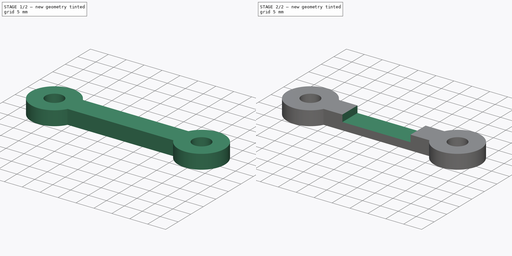
[diagram: build sequence overview — one tinted view per stage of 2, left to right]
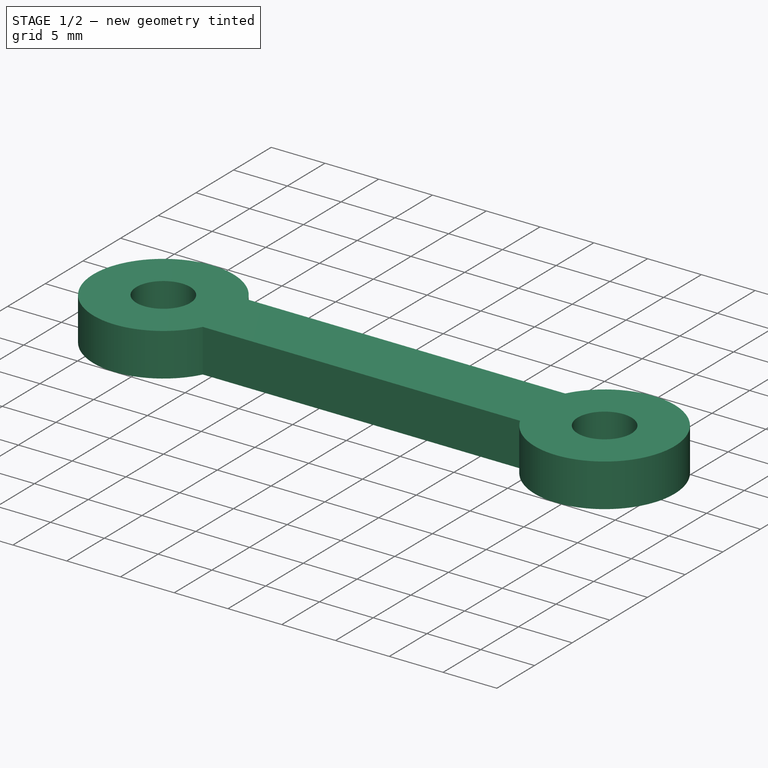
[diagram: stage 1 of 2 — iso view after this stage's code; geometry added in this stage tinted green]
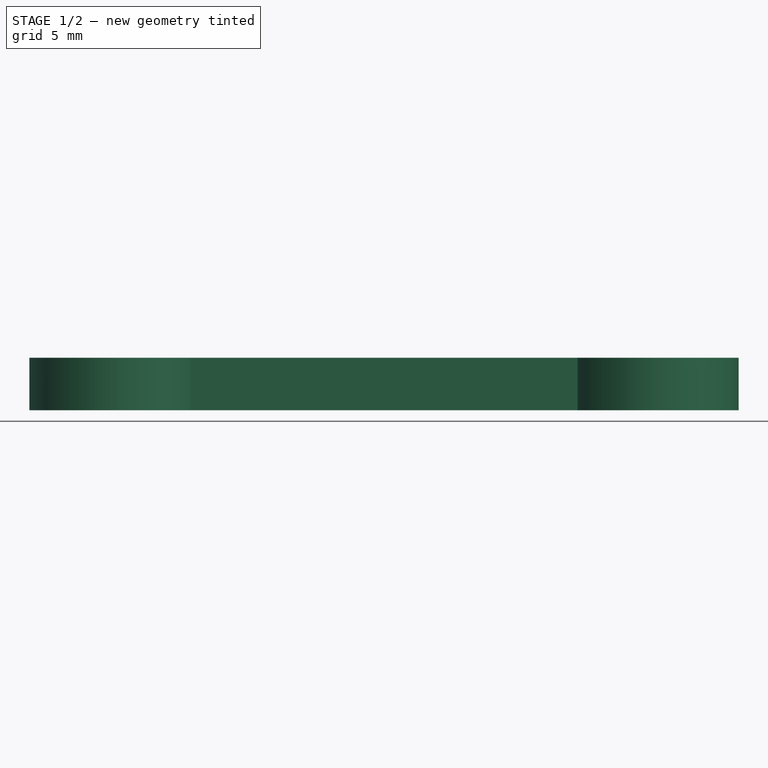
[diagram: stage 1 of 2 — front view after this stage's code; geometry added in this stage tinted green]
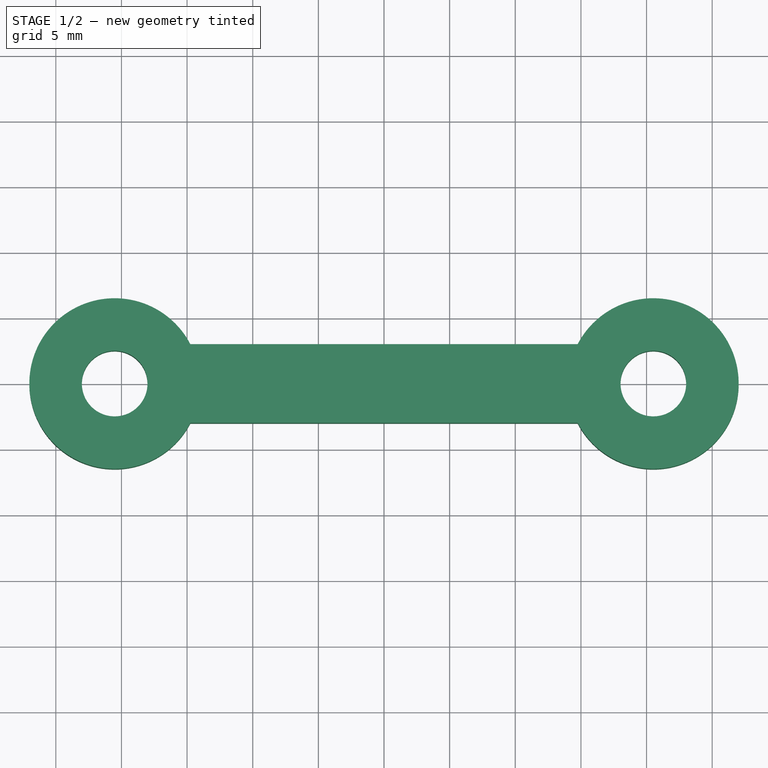
[diagram: stage 1 of 2 — top view after this stage's code; geometry added in this stage tinted green]
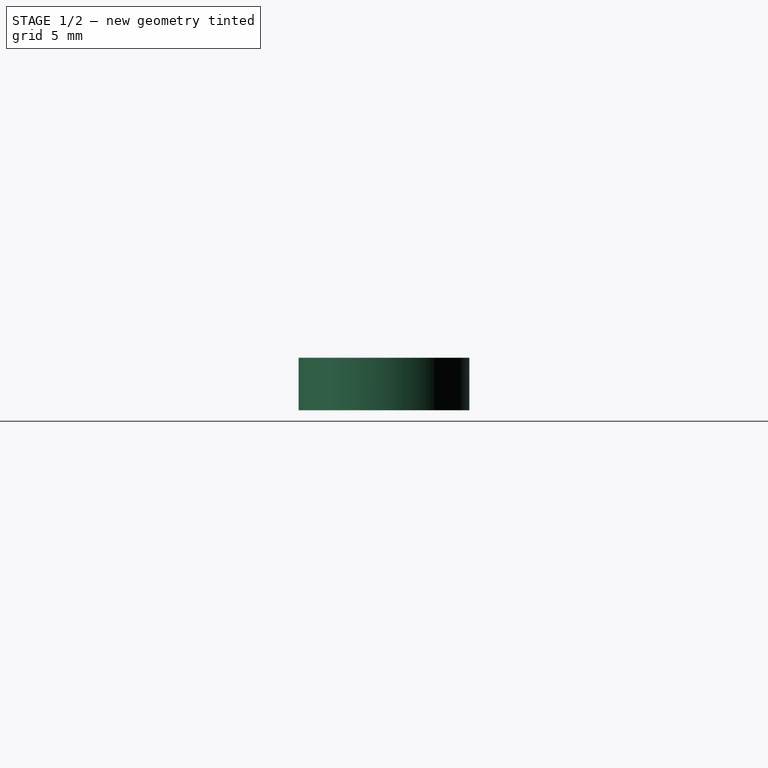
[diagram: stage 1 of 2 — right view after this stage's code; geometry added in this stage tinted green]
FCSTD DOCUMENT  (FreeCAD 0.15R4671 (Git))
Label: sensorBoard_fixBottom
License: All rights reserved
LicenseURL: http://fr.wikipedia.org/wiki/<copyright redacted>
objects: Sketcher::SketchObject×2, PartDesign::Pad×1, PartDesign::Pocket×1
note: 6 computed .brp shape members not serialized (recipe doc carries the construction recipe); baked Part::Feature solids carry a one-line shape summary decoded from their .brp

FEATURE [Sketcher::SketchObject] Sketch
  sketch-geometry (8):
    g0: LineSegment StartX=-14.75 StartY=3 StartZ=0 EndX=14.75 EndY=3 EndZ=0
    g1: LineSegment [constr] StartX=14.75 StartY=3 StartZ=0 EndX=14.75 EndY=-3 EndZ=0
    g2: LineSegment StartX=14.75 StartY=-3 StartZ=0 EndX=-14.75 EndY=-3 EndZ=0
    g3: LineSegment [constr] StartX=-14.75 StartY=-3 StartZ=0 EndX=-14.75 EndY=3 EndZ=0
    g4: Circle CenterX=-20.5163 CenterY=0 CenterZ=0 NormalX=0 NormalY=0 NormalZ=1 Radius=2.5
    g5: Circle CenterX=20.5163 CenterY=0 CenterZ=0 NormalX=0 NormalY=0 NormalZ=1 Radius=2.5
    g6: ArcOfCircle CenterX=-20.5163 CenterY=0 CenterZ=0 NormalX=0 NormalY=0 NormalZ=1 Radius=6.5 StartAngle=0.479729 EndAngle=5.80346
    g7: ArcOfCircle CenterX=20.5163 CenterY=0 CenterZ=0 NormalX=0 NormalY=0 NormalZ=1 Radius=6.5 StartAngle=3.62132 EndAngle=8.94505
  constraints (24):
    c: Coincident(g0,g1)
    c: Coincident(g1,g2)
    c: Coincident(g2,g3)
    c: Coincident(g3,g0)
    c: Horizontal(g0)
    c: Horizontal(g2)
    c: Vertical(g1)
    c: Vertical(g3)
    c: Distance(g0) = 29.5
    c: Distance(g3) = 6
    c: Radius(g5) = 2.5
    c: Equal(g5,g4)
    c: Symmetric(g2,g0,g-1)
    c: DistanceY(g4,g5) = 0
    c: PointOnObject(g4,g-1)
    c: Symmetric(g4,g5,g-1)
    c: Coincident(g6,g4)
    c: Coincident(g6,g0)
    c: Coincident(g6,g2)
    c: Coincident(g7,g5)
    c: Coincident(g7,g0)
    c: Coincident(g7,g1)
    c: Radius(g6) = 6.5
    c: Equal(g6,g7)
FEATURE [PartDesign::Pad] Pad
  Length = 4
  Length2 = 100
  Sketch = -> Sketch
  Type = 0
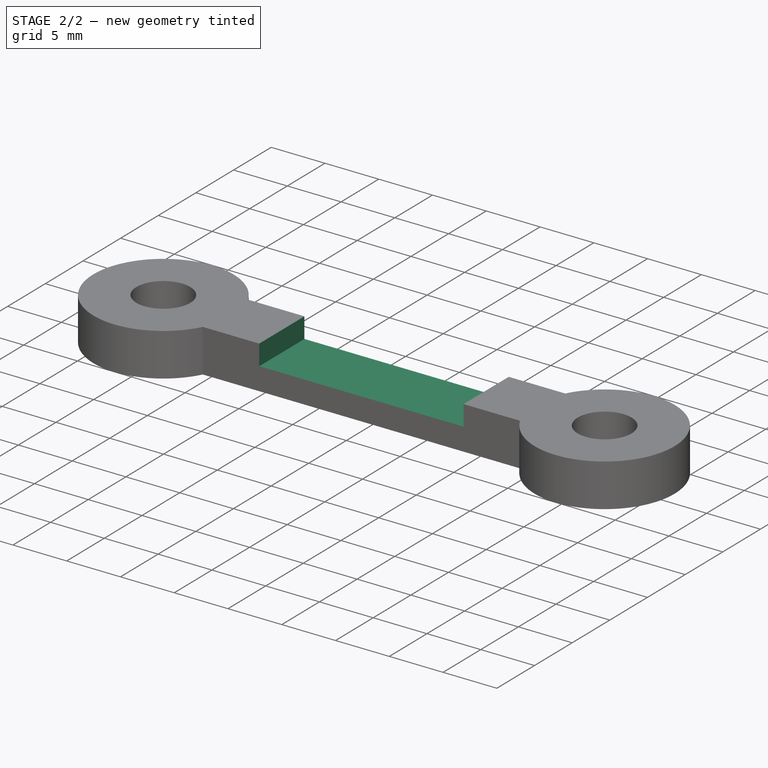
[diagram: stage 2 of 2 — iso view after this stage's code; geometry added in this stage tinted green]
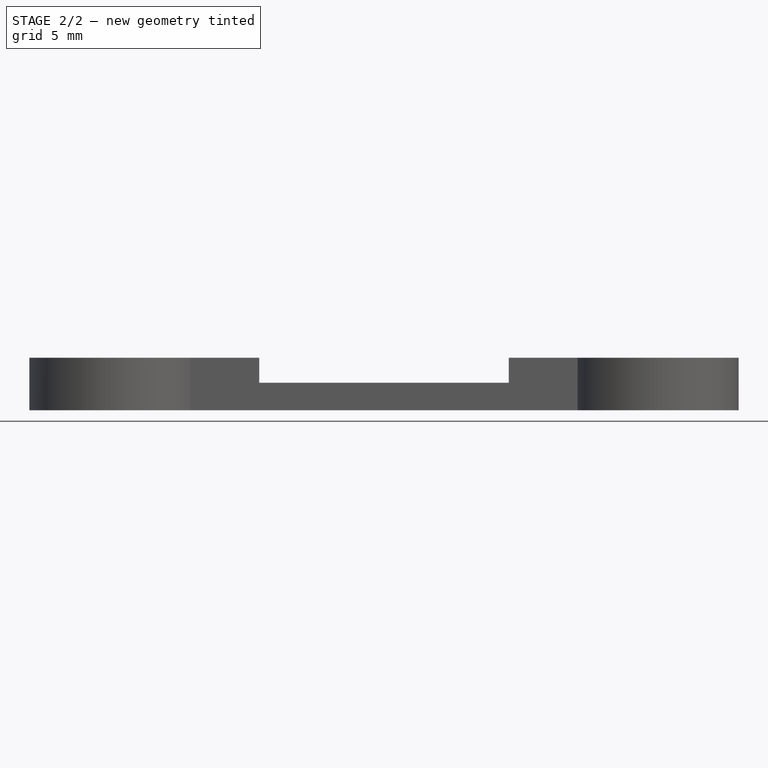
[diagram: stage 2 of 2 — front view after this stage's code; geometry added in this stage tinted green]
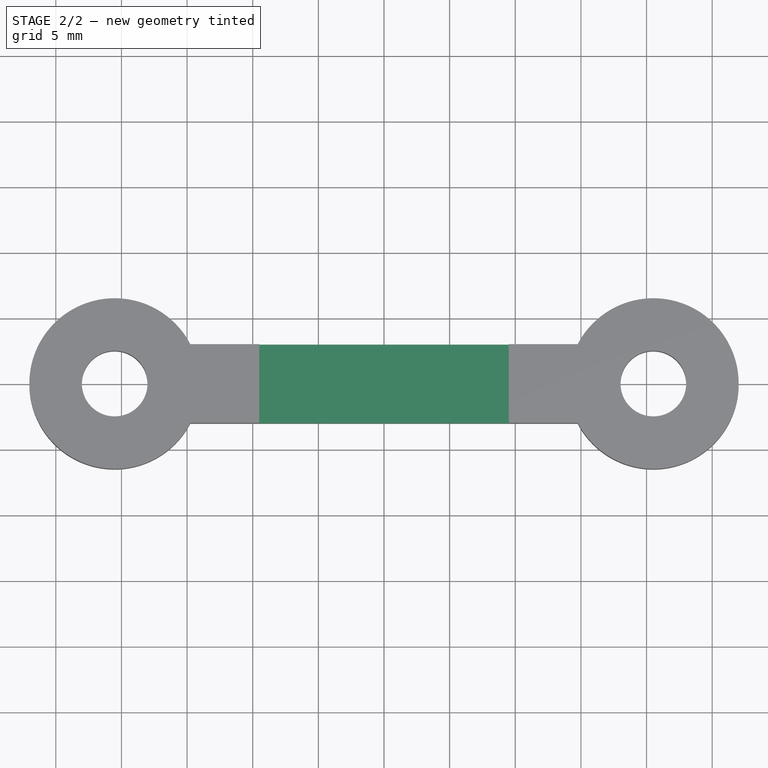
[diagram: stage 2 of 2 — top view after this stage's code; geometry added in this stage tinted green]
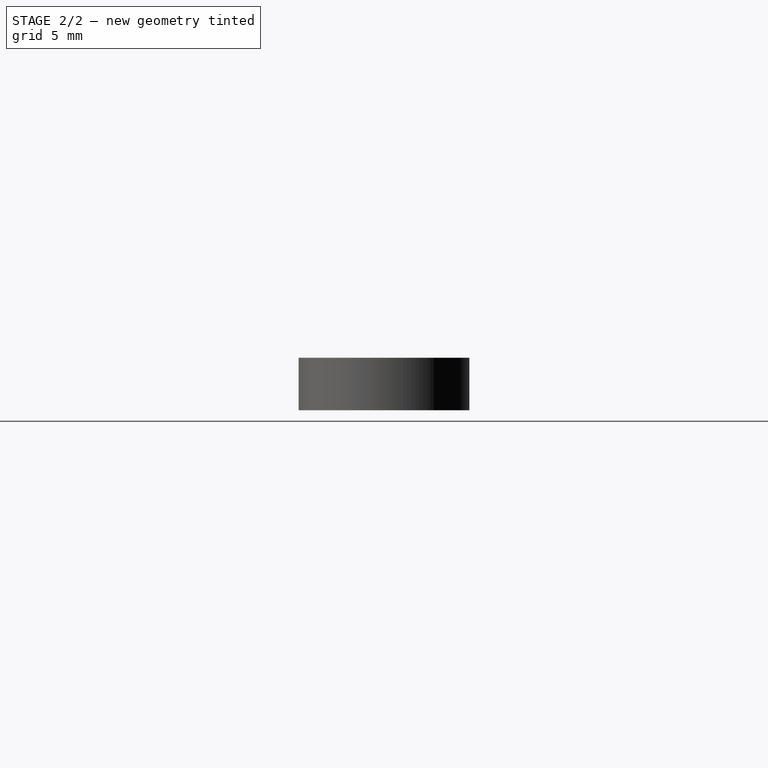
[diagram: stage 2 of 2 — right view after this stage's code; geometry added in this stage tinted green]
FEATURE [Sketcher::SketchObject] Sketch001
  ExternalGeometry = -> [Pad]
  Placement = pos=(0,0,4) rot=(0,0,1;0rad)
  Support = -> Pad [Face8]
  sketch-geometry (4):
    g0: LineSegment StartX=-9.5 StartY=-3 StartZ=0 EndX=9.5 EndY=-3 EndZ=0
    g1: LineSegment StartX=9.5 StartY=-3 StartZ=0 EndX=9.5 EndY=3 EndZ=0
    g2: LineSegment StartX=9.5 StartY=3 StartZ=0 EndX=-9.5 EndY=3 EndZ=0
    g3: LineSegment StartX=-9.5 StartY=3 StartZ=0 EndX=-9.5 EndY=-3 EndZ=0
  constraints (11):
    c: Coincident(g0,g1)
    c: Coincident(g1,g2)
    c: Coincident(g2,g3)
    c: Coincident(g3,g0)
    c: Horizontal(g0)
    c: Horizontal(g2)
    c: Vertical(g1)
    c: Vertical(g3)
    c: Symmetric(g2,g0,g-1)
    c: PointOnObject(g2,g-3)
    c: Distance(g2) = 19
FEATURE [PartDesign::Pocket] Pocket
  Length = 1.9
  Sketch = -> Sketch001
  Type = 0
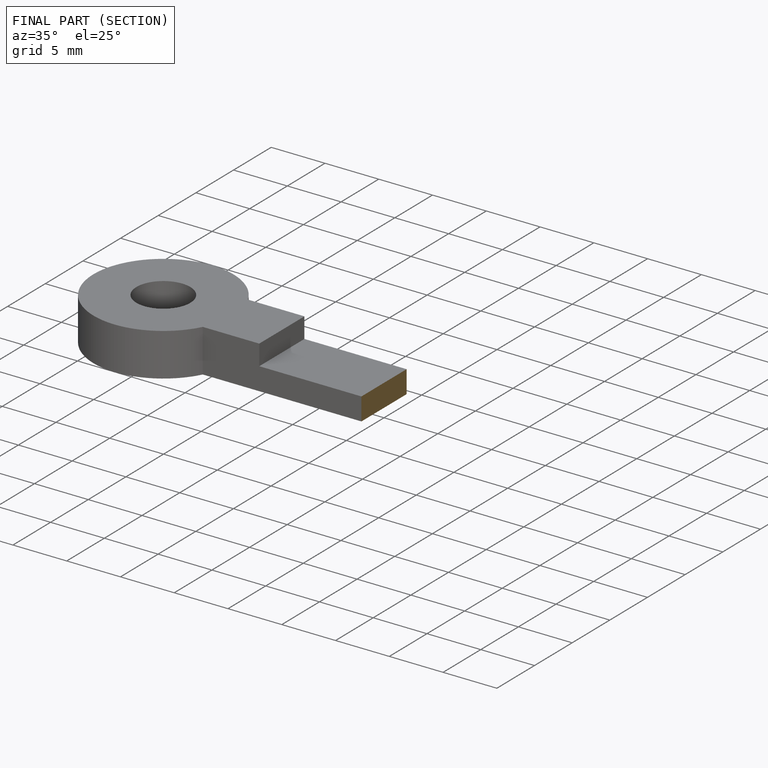
[diagram: finished part — half-section view (interior)]
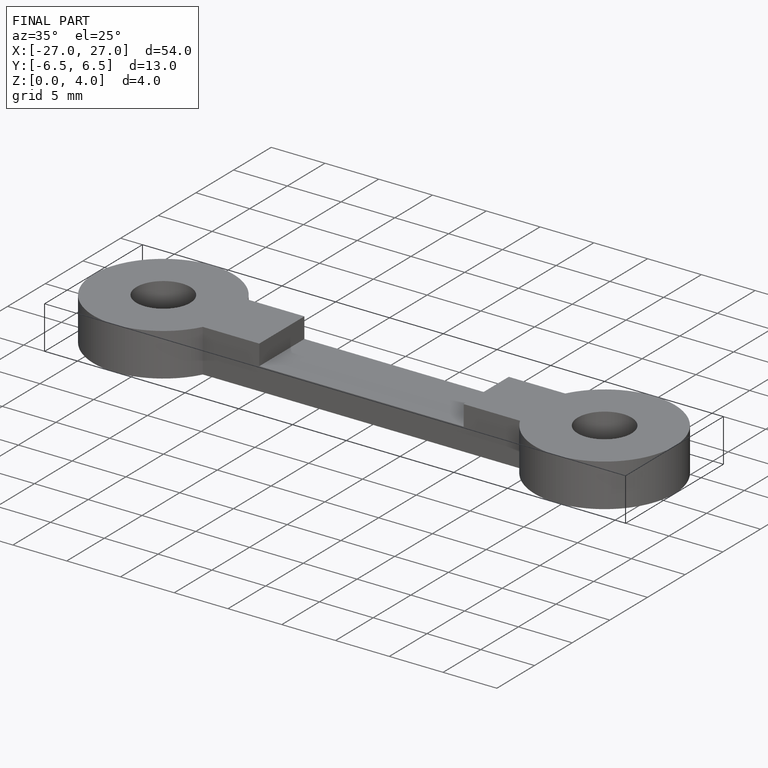
[diagram: finished part — iso view with bounding-box wireframe]
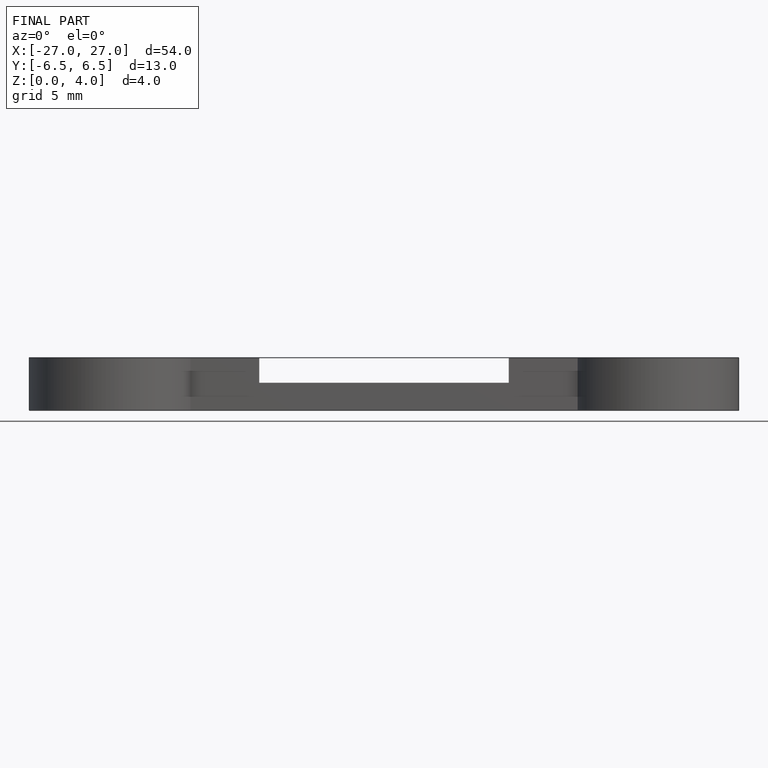
[diagram: finished part — front view with bounding-box wireframe]
